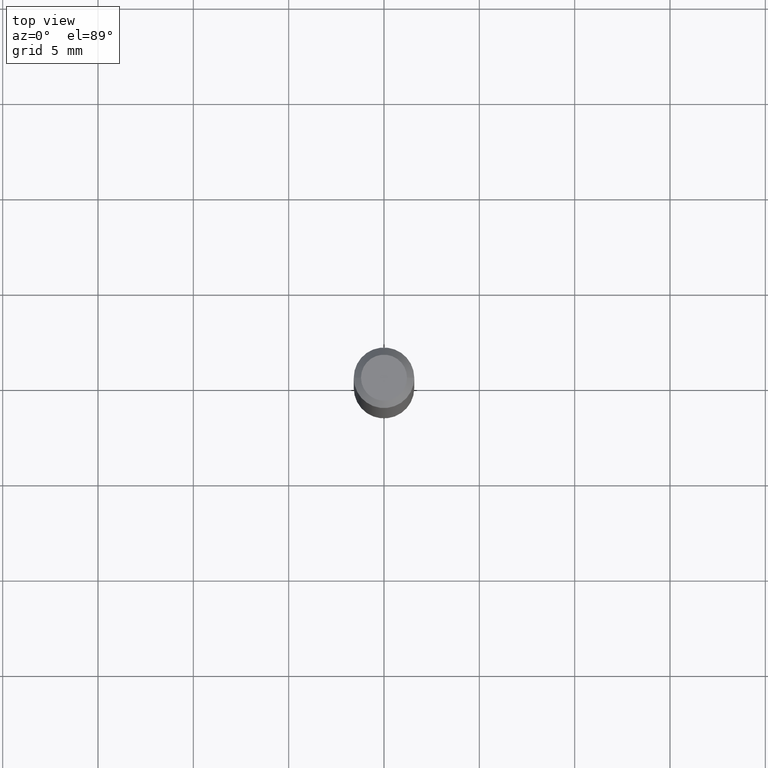
[diagram: clean part render]
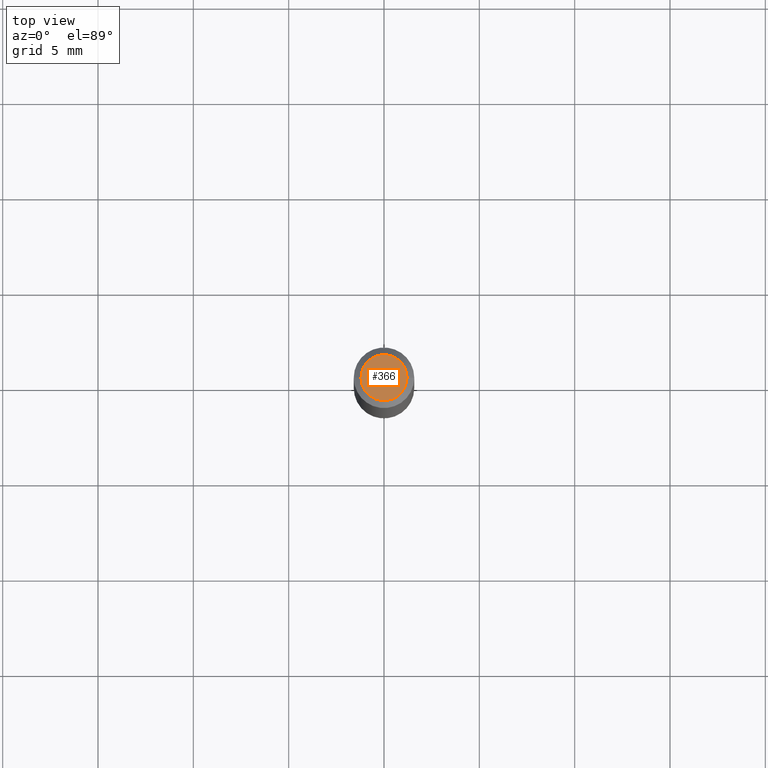
[diagram: same view with one face highlighted and labeled with its STEP entity id]
A machine part, top view. The second image highlights one B-rep face of the part: STEP entity #366.
In plain terms, the highlighted planar face has unit normal (0, -0, -1).
Its self-contained STEP definition (entity closure, byte-faithful):
#8 = FACE_OUTER_BOUND ( 'NONE', #293, .T. ) ;
#93 = PLANE ( 'NONE',  #419 ) ;
#121 = CIRCLE ( 'NONE', #172, 0.04750000000000000749 ) ;
#141 = ORIENTED_EDGE ( 'NONE', *, *, #493, .T. ) ;
#145 = DIRECTION ( 'NONE',  ( -1.000000000000000000, 6.982962677686265922E-15, -4.876176775795935793E-29 ) ) ;
#154 = VERTEX_POINT ( 'NONE', #155 ) ;
#155 = CARTESIAN_POINT ( 'NONE',  ( 0.04750000000000000749, -4.035134999187568762E-16, 2.731847993664288856E-16 ) ) ;
#156 = EDGE_CURVE ( 'NONE', #276, #154, #121, .T. ) ;
#166 = CIRCLE ( 'NONE', #369, 0.04750000000000000749 ) ;
#172 = AXIS2_PLACEMENT_3D ( 'NONE', #313, #265, #509 ) ;
#177 = DIRECTION ( 'NONE',  ( 2.438088387897960049E-29, -3.491481338843145188E-15, -1.000000000000000000 ) ) ;
#178 = DIRECTION ( 'NONE',  ( -2.445468806185136597E-29, 3.491481338843145583E-15, 1.000000000000000000 ) ) ;
#181 = CARTESIAN_POINT ( 'NONE',  ( 3.316907271900976589E-16, 0.04750000000000000749, -2.925296391183627249E-17 ) ) ;
#227 = DIRECTION ( 'NONE',  ( 1.000000000000000000, -6.982962677686266711E-15, 4.852736867747365086E-29 ) ) ;
#265 = DIRECTION ( 'NONE',  ( -2.445468806185136597E-29, 3.491481338843145583E-15, 1.000000000000000000 ) ) ;
#276 = VERTEX_POINT ( 'NONE', #456 ) ;
#293 = EDGE_LOOP ( 'NONE', ( #312, #141 ) ) ;
#312 = ORIENTED_EDGE ( 'NONE', *, *, #156, .T. ) ;
#313 = CARTESIAN_POINT ( 'NONE',  ( -6.680649051745406845E-45, 9.538196290434862081E-31, 2.731847993664263218E-16 ) ) ;
#366 = ADVANCED_FACE ( 'NONE', ( #8 ), #93, .F. ) ;
#369 = AXIS2_PLACEMENT_3D ( 'NONE', #375, #178, #227 ) ;
#375 = CARTESIAN_POINT ( 'NONE',  ( -6.680649051745406845E-45, 9.538196290434862081E-31, 2.731847993664263218E-16 ) ) ;
#419 = AXIS2_PLACEMENT_3D ( 'NONE', #181, #177, #145 ) ;
#456 = CARTESIAN_POINT ( 'NONE',  ( -0.04750000000000000749, 3.578768372314221353E-16, 2.731847993664239060E-16 ) ) ;
#493 = EDGE_CURVE ( 'NONE', #154, #276, #166, .T. ) ;
#509 = DIRECTION ( 'NONE',  ( 1.000000000000000000, -6.982962677686266711E-15, 4.852736867747365086E-29 ) ) ;